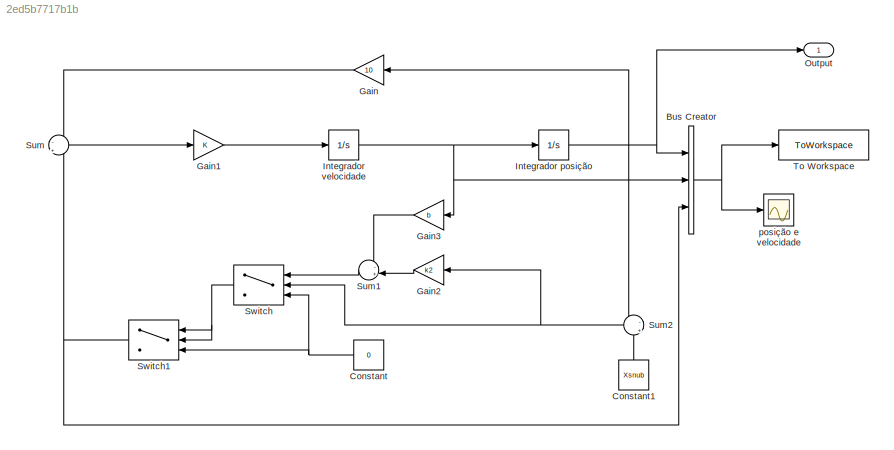
MODEL slx_2ed5b7717b1b
KIND model
CONFIG AbsTol = auto
CONFIG EnableMultiTasking = off
CONFIG FixedStep = auto
CONFIG MaxStep = auto
CONFIG MinStep = auto
CONFIG RelTol = 1e-3
CONFIG SampleTimeConstraint = Unconstrained
CONFIG SolverName = VariableStepAuto
CONFIG StartTime = 0.0
CONFIG StopTime = 1.5
BLOCK [BusCreator] Bus Creator
  DisplayOption = bar
  InheritFromInputs = on
  Inputs = 3
  Ports = [3, 1]
BLOCK [Constant] Constant
  NameLocation = top
  Value = 0
BLOCK [Constant] Constant1
  NameLocation = right
  Value = Xsnub
BLOCK [Gain] Gain
  Gain = 10
  NameLocation = top
BLOCK [Gain] Gain1
BLOCK [Gain] Gain2
  Gain = k2
  NameLocation = top
BLOCK [Gain] Gain3
  Gain = b
  NameLocation = top
BLOCK [Integrator] Integrador posição
  InitialCondition = 0.05
  Ports = [1, 1]
BLOCK [Integrator] Integrador velocidade
  InitialCondition = -0.5
  Ports = [1, 1]
BLOCK [Outport] Output
BLOCK [Sum] Sum
  Inputs = -|+
  Ports = [2, 1]
BLOCK [Sum] Sum1
  Inputs = -+|
  NameLocation = top
  Ports = [2, 1]
BLOCK [Sum] Sum2
  Inputs = -|+
  NameLocation = top
  Ports = [2, 1]
BLOCK [Switch] Switch
  InputSameDT = off
  NameLocation = top
  SaturateOnIntegerOverflow = off
BLOCK [Switch] Switch1
  InputSameDT = off
  NameLocation = top
  SaturateOnIntegerOverflow = off
BLOCK [ToWorkspace] To Workspace
  FixptAsFi = on
  MaxDataPoints = inf
  Ports = [1]
  SampleTime = -1
  Save2DSignal = 2-D array (concatenate along first dimension)
  VariableName = Y
BLOCK [Scope] posição e velocidade
  Floating = off
  NumInputPorts = 1
  Ports = [1]
  ScopeSpecificationString = Simulink.scopes.TimeScopeBlockCfg('CurrentConfiguration', extmgr.ConfigurationSet(extmgr.Configuration('Core','General UI',true,'FigureColor',[1 1 1]),extmgr.Configuration('Core','Source UI',true),extmgr.Configuration('Sources','WiredSimulink',true),extmgr.Configuration('Visuals','Time Domain',true,'SerializedDisplays',{struct('MinYLimReal','-0.61268','MaxYLimReal','0.2747','YLabelReal','','MinYLi...<+1955ch>
NET Bus Creator:1 -> To Workspace:1, posição e velocidade:1
LINE Constant1:1 -> Sum2:2
NET Constant:1 -> Switch1:3, Switch:3
LINE Gain1:1 -> Integrador velocidade:1
LINE Gain2:1 -> Sum1:2
LINE Gain3:1 -> Sum1:1
LINE Gain:1 -> Sum:1
NET Integrador posição:1 -> Bus Creator:1, Gain:1, Output:1, Sum2:1
NET Integrador velocidade:1 -> Bus Creator:2, Gain3:1, Integrador posição:1
LINE Sum1:1 -> Switch:1
NET Sum2:1 -> Gain2:1, Switch:2
LINE Sum:1 -> Gain1:1
NET Switch1:1 -> Bus Creator:3, Sum:2
NET Switch:1 -> Switch1:1, Switch1:2
note: NET lines group one-source signal fan-out (src -> all destinations, sorted); 1:1 wires keep LINE
